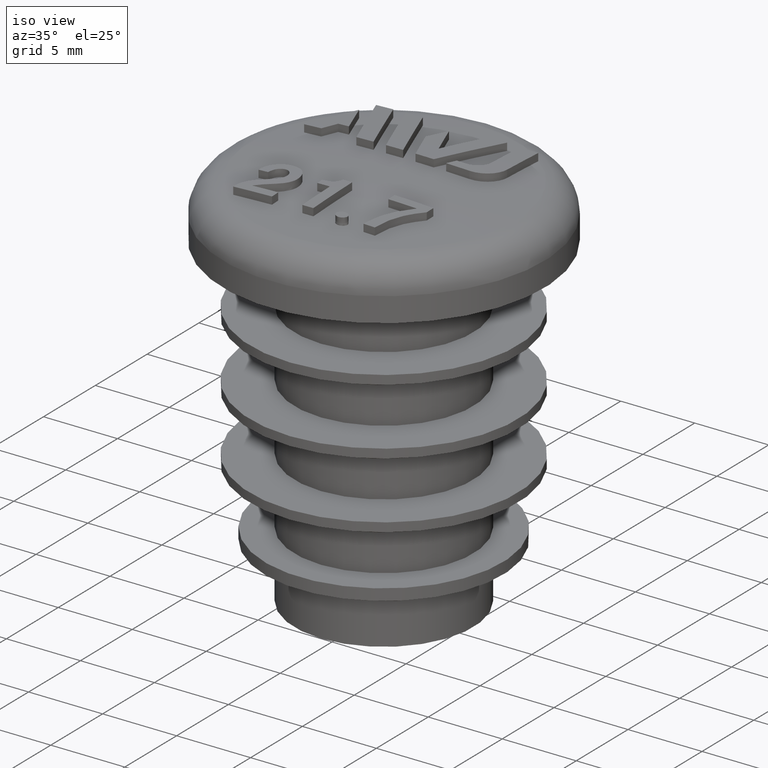
[diagram: clean part render]
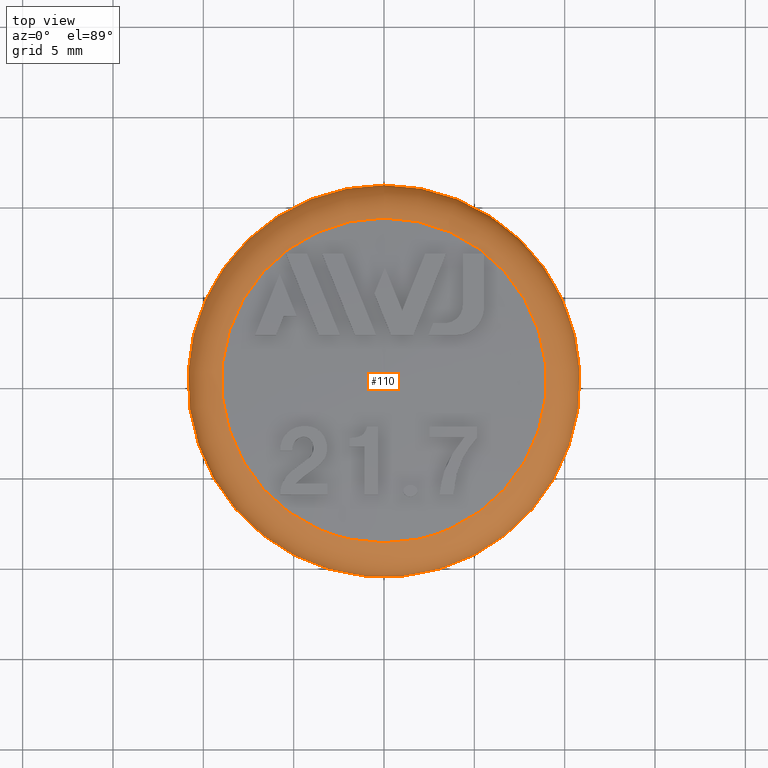
[diagram: tour spotlight — one face highlighted and labeled with its STEP entity id]
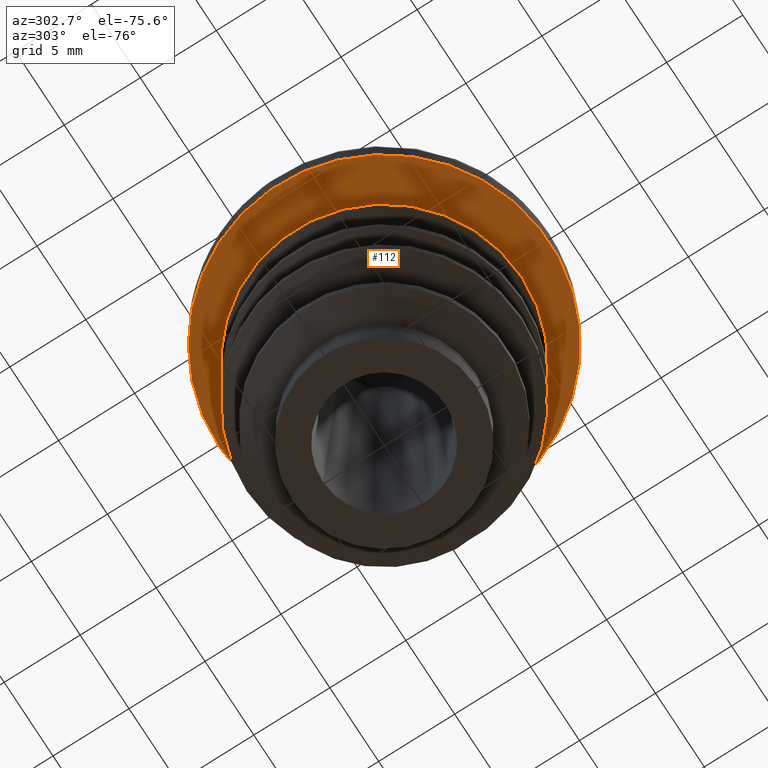
[diagram: tour spotlight — one face highlighted and labeled with its STEP entity id]
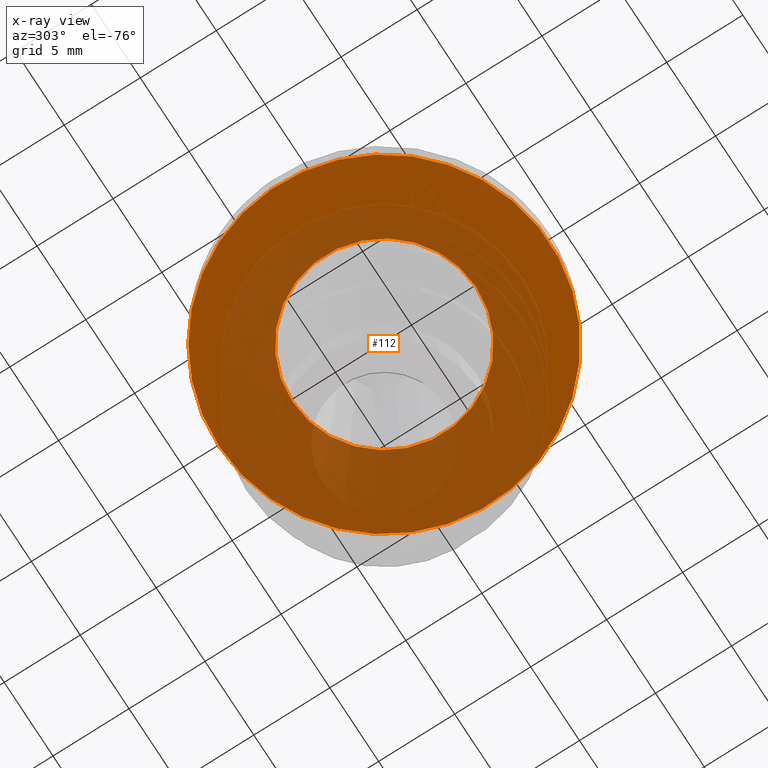
[diagram: x-ray of the same camera — body ghosted, this tour face saturated]
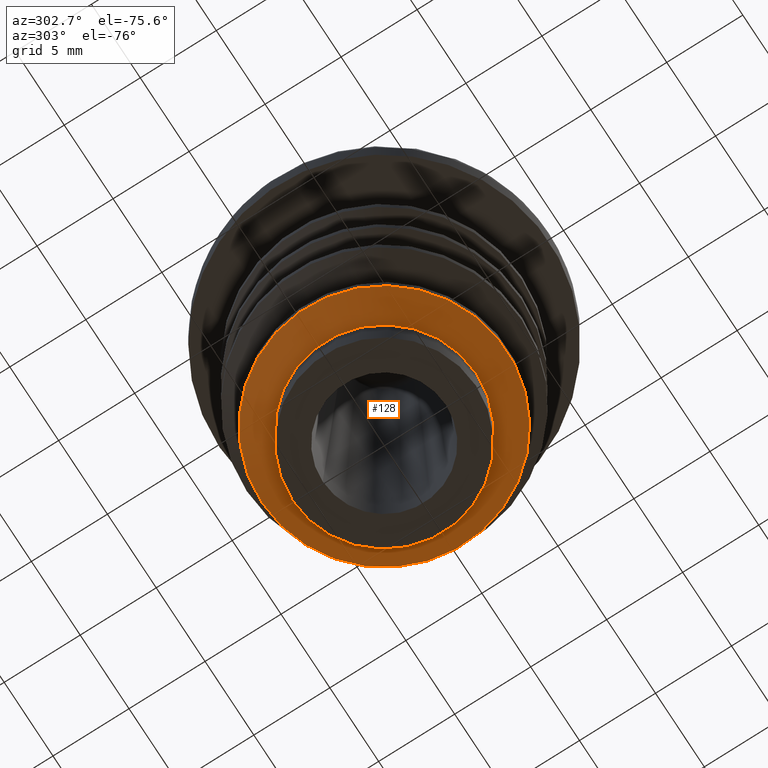
[diagram: tour spotlight — one face highlighted and labeled with its STEP entity id]
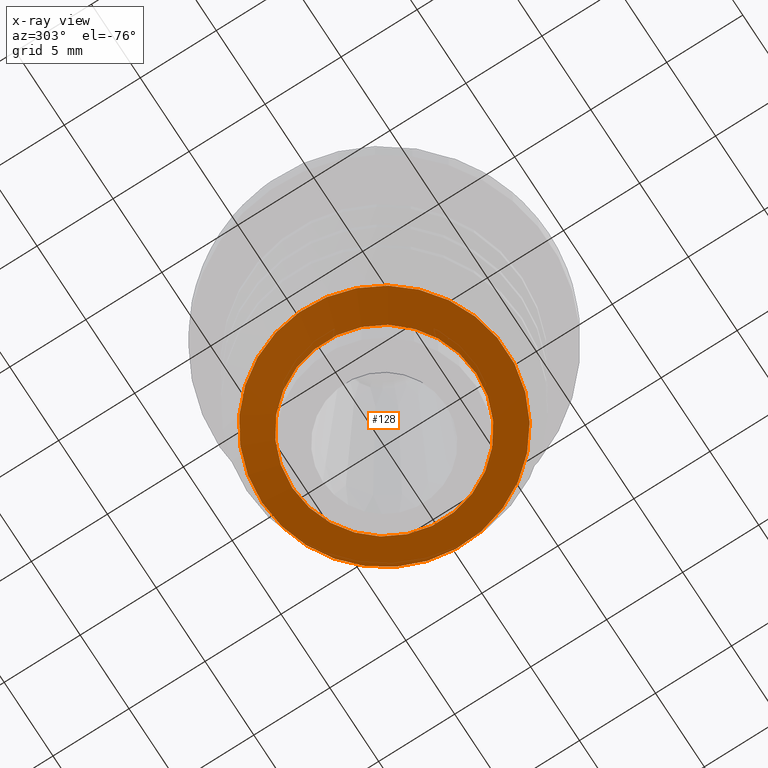
[diagram: x-ray of the same camera — body ghosted, this tour face saturated]
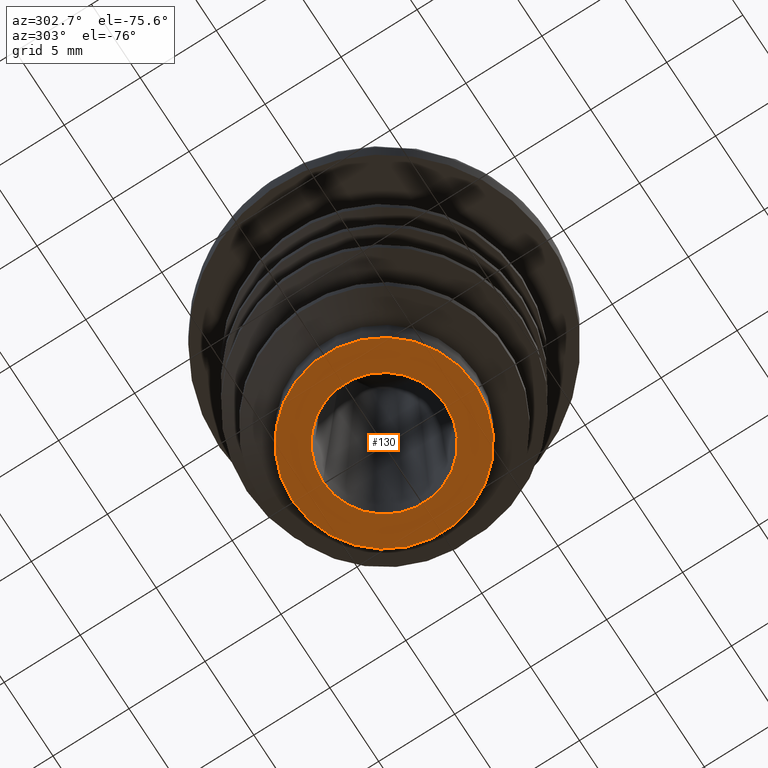
[diagram: tour spotlight — one face highlighted and labeled with its STEP entity id]
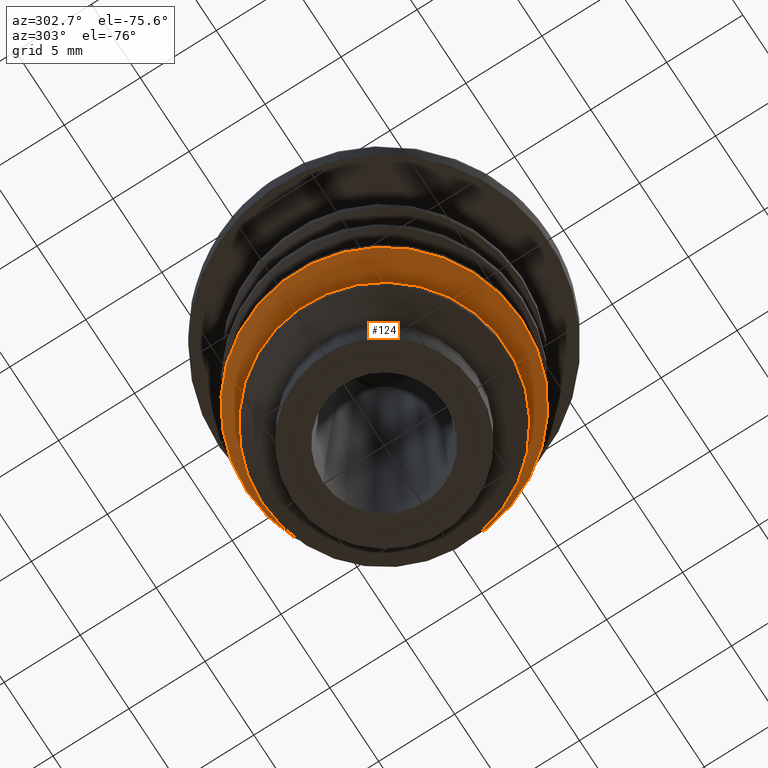
[diagram: tour spotlight — one face highlighted and labeled with its STEP entity id]
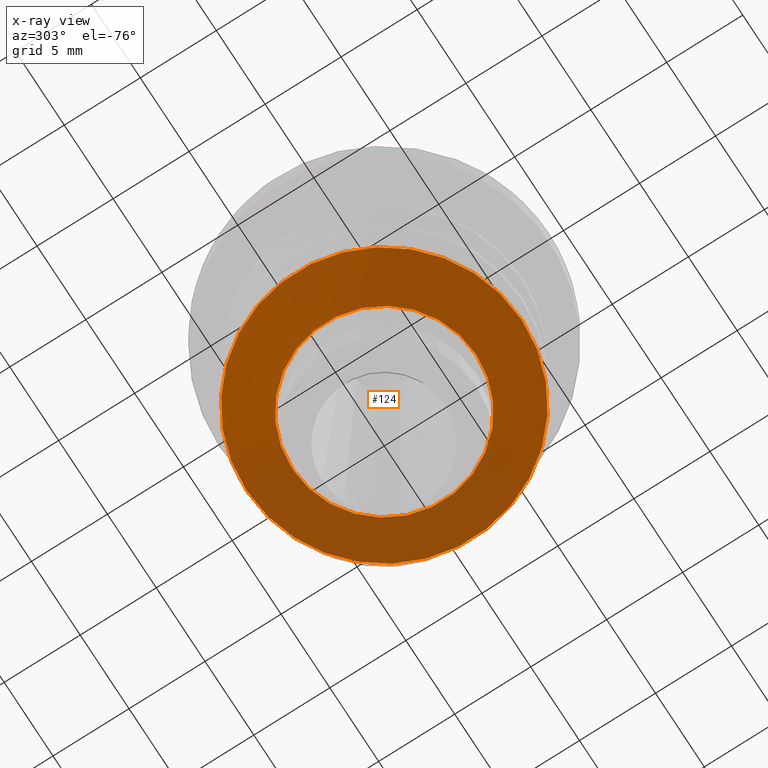
[diagram: x-ray of the same camera — body ghosted, this tour face saturated]
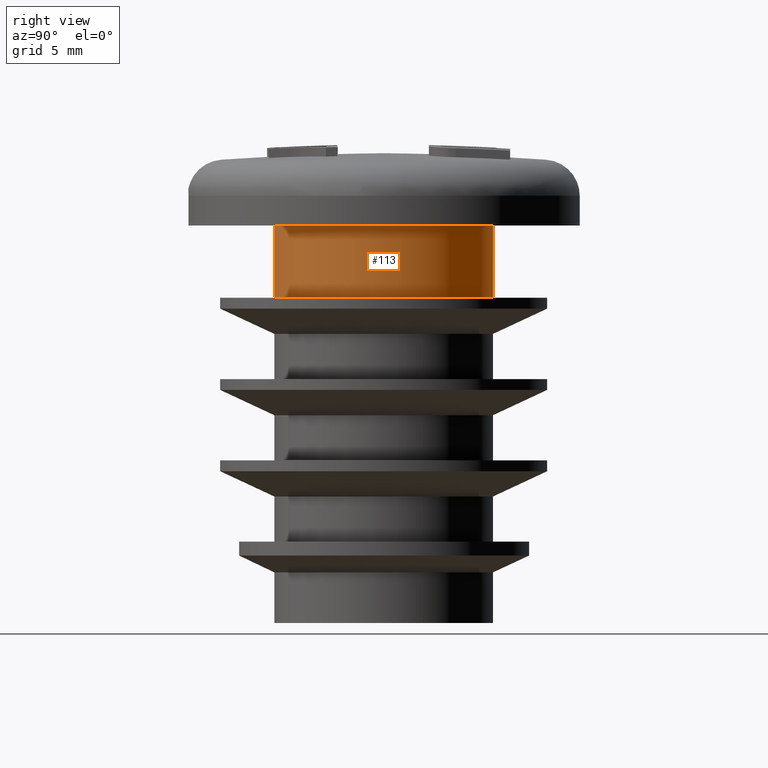
[diagram: tour spotlight — one face highlighted and labeled with its STEP entity id]
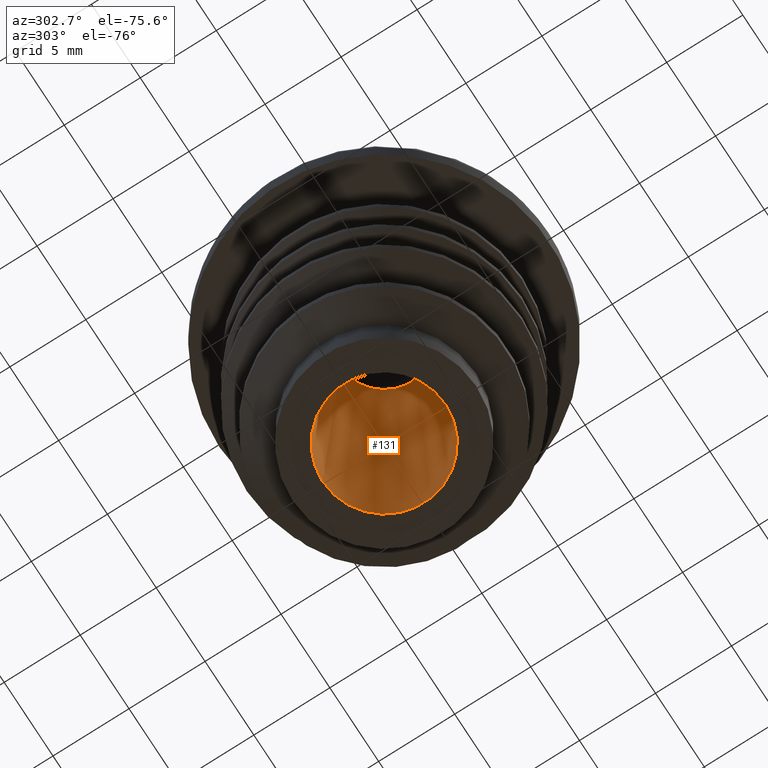
[diagram: tour spotlight — one face highlighted and labeled with its STEP entity id]
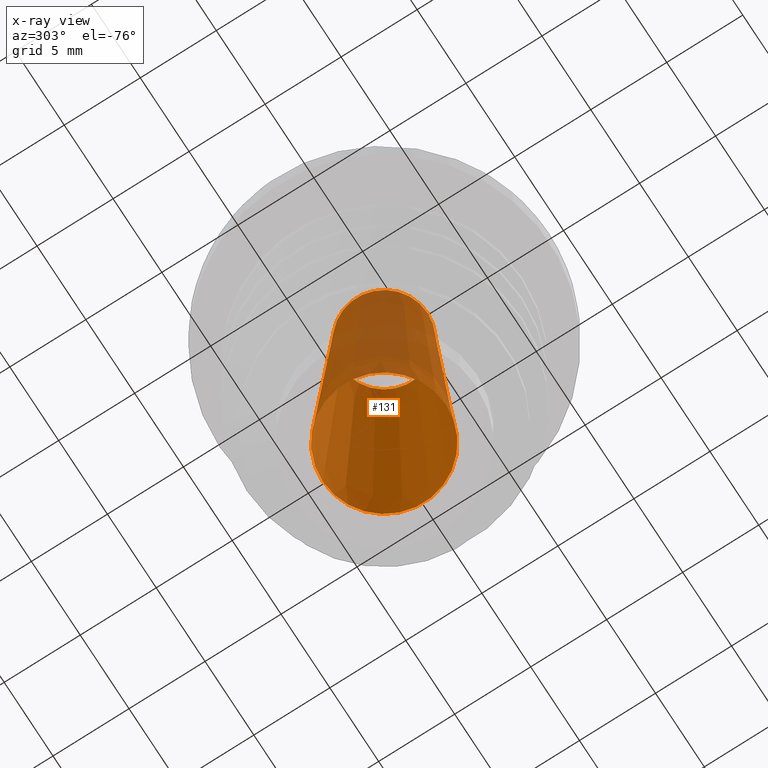
[diagram: x-ray of the same camera — body ghosted, this tour face saturated]
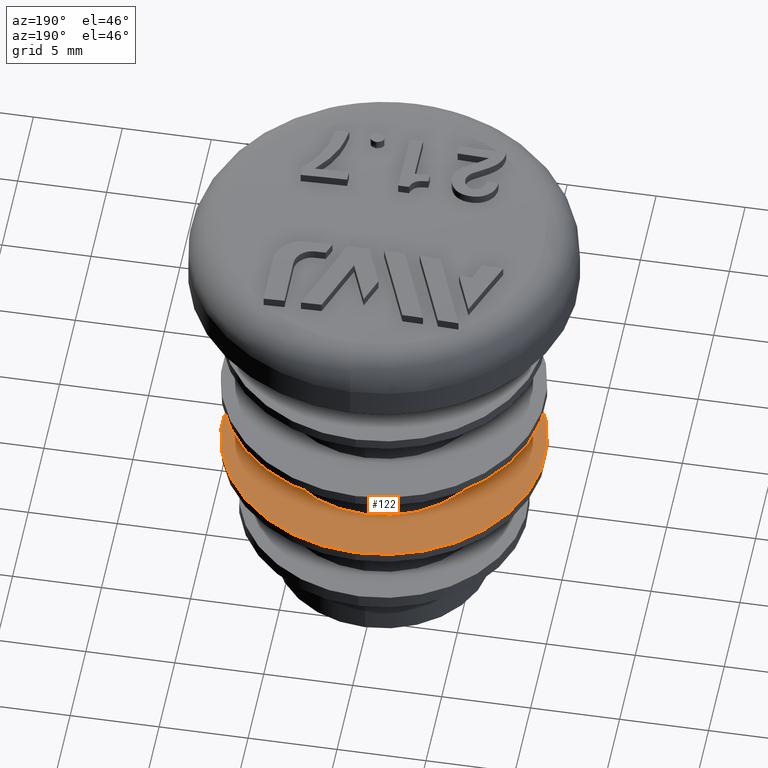
[diagram: tour spotlight — one face highlighted and labeled with its STEP entity id]
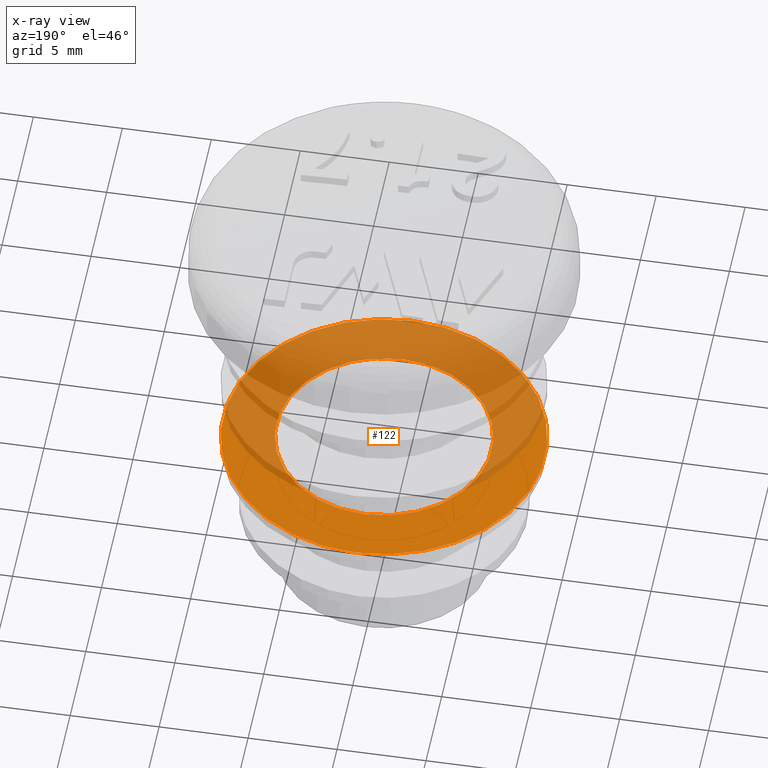
[diagram: x-ray of the same camera — body ghosted, this tour face saturated]
A machine part: a face-by-face anatomy tour. The part has 83 B-rep faces; the first image is the clean iso view, then the 8 largest visible faces are spotlighted one at a time (largest first), each with its STEP entity span.

Face 1 — top view, entity #110. In plain terms, the highlighted toroidal blend (fillet) surface has major radius 8.85 mm and minor (blend) radius 2 mm.
Definition (entity closure, byte-faithful):
#110 = ADVANCED_FACE( '', ( #239, #240 ), #241, .T. );
#239 = FACE_OUTER_BOUND( '', #605, .T. );
#240 = FACE_OUTER_BOUND( '', #606, .T. );
#241 = TOROIDAL_SURFACE( '', #607, 8.85000000000000, 2.00000000000000 );
#605 = EDGE_LOOP( '', ( #1079 ) );
#606 = EDGE_LOOP( '', ( #1080 ) );
#607 = AXIS2_PLACEMENT_3D( '', #1081, #1082, #1083 );
#1079 = ORIENTED_EDGE( '', *, *, #1517, .F. );
#1080 = ORIENTED_EDGE( '', *, *, #1426, .T. );
#1081 = CARTESIAN_POINT( '', ( 0.000000000000000, 1.00823282938018E-016, 23.6466235476129 ) );
#1082 = DIRECTION( '', ( 0.000000000000000, -6.12303176911189E-017, -1.00000000000000 ) );
#1083 = DIRECTION( '', ( 0.000000000000000, 1.00000000000000, -6.12303176911189E-017 ) );
#1426 = EDGE_CURVE( '', #1620, #1620, #1621, .T. );
#1517 = EDGE_CURVE( '', #1772, #1772, #1773, .T. );
#1620 = VERTEX_POINT( '', #2103 );
#1621 = CIRCLE( '', #2104, 8.98953496199148 );
#1772 = VERTEX_POINT( '', #2580 );
#1773 = CIRCLE( '', #2581, 10.8500000000000 );
#2103 = CARTESIAN_POINT( '', ( 0.000000000000000, 8.98953496199148, 25.6417501086065 ) );
#2104 = AXIS2_PLACEMENT_3D( '', #2846, #2847, #2848 );
#2580 = CARTESIAN_POINT( '', ( 0.000000000000000, 10.8500000000000, 23.6466235476129 ) );
#2581 = AXIS2_PLACEMENT_3D( '', #2877, #2878, #2879 );
#2846 = CARTESIAN_POINT( '', ( 0.000000000000000, 2.22985516101645E-016, 25.6417501086065 ) );
#2847 = DIRECTION( '', ( 0.000000000000000, -6.12303176911189E-017, -1.00000000000000 ) );
#2848 = DIRECTION( '', ( 0.000000000000000, 1.00000000000000, -6.12303176911189E-017 ) );
#2877 = CARTESIAN_POINT( '', ( 0.000000000000000, 1.00823282938018E-016, 23.6466235476129 ) );
#2878 = DIRECTION( '', ( 0.000000000000000, -6.12303176911189E-017, -1.00000000000000 ) );
#2879 = DIRECTION( '', ( 0.000000000000000, 1.00000000000000, -6.12303176911189E-017 ) );

Face 2 — auxiliary view, entity #112. An x-ray twin of the same camera follows (body ghosted, this face saturated) — the face is partly hidden behind the body. In plain terms, the highlighted planar face has unit normal (0, 0, 1).
Definition (entity closure, byte-faithful):
#112 = ADVANCED_FACE( '', ( #245, #246 ), #247, .F. );
#245 = FACE_BOUND( '', #611, .T. );
#246 = FACE_OUTER_BOUND( '', #612, .T. );
#247 = PLANE( '', #613 );
#611 = EDGE_LOOP( '', ( #1089 ) );
#612 = EDGE_LOOP( '', ( #1090 ) );
#613 = AXIS2_PLACEMENT_3D( '', #1091, #1092, #1093 );
#1089 = ORIENTED_EDGE( '', *, *, #1519, .F. );
#1090 = ORIENTED_EDGE( '', *, *, #1518, .T. );
#1091 = CARTESIAN_POINT( '', ( -10.8500000000000, -6.63860434626887E-032, 22.0000000000000 ) );
#1092 = DIRECTION( '', ( 0.000000000000000, 6.12303176911189E-017, 1.00000000000000 ) );
#1093 = DIRECTION( '', ( 0.000000000000000, -1.00000000000000, 6.12303176911189E-017 ) );
#1518 = EDGE_CURVE( '', #1774, #1774, #1775, .T. );
#1519 = EDGE_CURVE( '', #1776, #1776, #1777, .T. );
#1774 = VERTEX_POINT( '', #2582 );
#1775 = CIRCLE( '', #2583, 10.8500000000000 );
#1776 = VERTEX_POINT( '', #2584 );
#1777 = CIRCLE( '', #2585, 6.05000000000001 );
#2582 = CARTESIAN_POINT( '', ( 0.000000000000000, 10.8500000000000, 22.0000000000000 ) );
#2583 = AXIS2_PLACEMENT_3D( '', #2880, #2881, #2882 );
#2584 = CARTESIAN_POINT( '', ( 0.000000000000000, 6.05000000000001, 22.0000000000000 ) );
#2585 = AXIS2_PLACEMENT_3D( '', #2883, #2884, #2885 );
#2880 = CARTESIAN_POINT( '', ( 0.000000000000000, -1.32772086925377E-031, 22.0000000000000 ) );
#2881 = DIRECTION( '', ( 0.000000000000000, -6.12303176911189E-017, -1.00000000000000 ) );
#2882 = DIRECTION( '', ( 0.000000000000000, 1.00000000000000, -6.12303176911189E-017 ) );
#2883 = CARTESIAN_POINT( '', ( 0.000000000000000, 0.000000000000000, 22.0000000000000 ) );
#2884 = DIRECTION( '', ( 0.000000000000000, -6.12303176911189E-017, -1.00000000000000 ) );
#2885 = DIRECTION( '', ( 0.000000000000000, 1.00000000000000, -6.12303176911189E-017 ) );

Face 3 — auxiliary view, entity #128. An x-ray twin of the same camera follows (body ghosted, this face saturated) — the face is partly hidden behind the body. In plain terms, the highlighted conical surface has half-angle 65 deg.
Definition (entity closure, byte-faithful):
#128 = ADVANCED_FACE( '', ( #293, #294 ), #295, .T. );
#293 = FACE_BOUND( '', #659, .T. );
#294 = FACE_OUTER_BOUND( '', #660, .T. );
#295 = CONICAL_SURFACE( '', #661, 8.05000000000000, 1.13446401379632 );
#659 = EDGE_LOOP( '', ( #1169 ) );
#660 = EDGE_LOOP( '', ( #1170 ) );
#661 = AXIS2_PLACEMENT_3D( '', #1171, #1172, #1173 );
#1169 = ORIENTED_EDGE( '', *, *, #1535, .F. );
#1170 = ORIENTED_EDGE( '', *, *, #1534, .T. );
#1171 = CARTESIAN_POINT( '', ( 0.000000000000000, -1.11851776756822E-015, 3.73261531631000 ) );
#1172 = DIRECTION( '', ( 0.000000000000000, 6.12303176911189E-017, 1.00000000000000 ) );
#1173 = DIRECTION( '', ( 0.000000000000000, -1.00000000000000, 6.12303176911189E-017 ) );
#1534 = EDGE_CURVE( '', #1806, #1806, #1807, .T. );
#1535 = EDGE_CURVE( '', #1808, #1808, #1809, .T. );
#1806 = VERTEX_POINT( '', #2614 );
#1807 = CIRCLE( '', #2615, 8.05000000000000 );
#1808 = VERTEX_POINT( '', #2616 );
#1809 = CIRCLE( '', #2617, 6.05000000000001 );
#2614 = CARTESIAN_POINT( '', ( 0.000000000000000, 8.05000000000000, 3.73261531631000 ) );
#2615 = AXIS2_PLACEMENT_3D( '', #2928, #2929, #2930 );
#2616 = CARTESIAN_POINT( '', ( 0.000000000000000, 6.05000000000001, 2.80000000000000 ) );
#2617 = AXIS2_PLACEMENT_3D( '', #2931, #2932, #2933 );
#2928 = CARTESIAN_POINT( '', ( 0.000000000000000, -1.11851776756822E-015, 3.73261531631000 ) );
#2929 = DIRECTION( '', ( 0.000000000000000, -6.12303176911189E-017, -1.00000000000000 ) );
#2930 = DIRECTION( '', ( 0.000000000000000, 1.00000000000000, -6.12303176911189E-017 ) );
#2931 = CARTESIAN_POINT( '', ( 0.000000000000000, -1.17562209966948E-015, 2.80000000000000 ) );
#2932 = DIRECTION( '', ( 0.000000000000000, -6.12303176911189E-017, -1.00000000000000 ) );
#2933 = DIRECTION( '', ( 0.000000000000000, 1.00000000000000, -6.12303176911189E-017 ) );

Face 4 — auxiliary view, entity #130. In plain terms, the highlighted planar face has unit normal (0, 0, 1).
Definition (entity closure, byte-faithful):
#130 = ADVANCED_FACE( '', ( #299, #300 ), #301, .F. );
#299 = FACE_BOUND( '', #665, .T. );
#300 = FACE_OUTER_BOUND( '', #666, .T. );
#301 = PLANE( '', #667 );
#665 = EDGE_LOOP( '', ( #1179 ) );
#666 = EDGE_LOOP( '', ( #1180 ) );
#667 = AXIS2_PLACEMENT_3D( '', #1181, #1182, #1183 );
#1179 = ORIENTED_EDGE( '', *, *, #1537, .F. );
#1180 = ORIENTED_EDGE( '', *, *, #1536, .T. );
#1181 = CARTESIAN_POINT( '', ( -6.05000000000000, -1.34706698920461E-015, 3.46944695195361E-015 ) );
#1182 = DIRECTION( '', ( 0.000000000000000, 6.12303176911189E-017, 1.00000000000000 ) );
#1183 = DIRECTION( '', ( 0.000000000000000, -1.00000000000000, 6.12303176911189E-017 ) );
#1536 = EDGE_CURVE( '', #1810, #1810, #1811, .T. );
#1537 = EDGE_CURVE( '', #1812, #1812, #1813, .T. );
#1810 = VERTEX_POINT( '', #2618 );
#1811 = CIRCLE( '', #2619, 6.05000000000000 );
#1812 = VERTEX_POINT( '', #2620 );
#1813 = CIRCLE( '', #2621, 4.04999999999997 );
#2618 = CARTESIAN_POINT( '', ( 0.000000000000000, 6.05000000000000, 6.56845048187596E-015 ) );
#2619 = AXIS2_PLACEMENT_3D( '', #2934, #2935, #2936 );
#2620 = CARTESIAN_POINT( '', ( 0.000000000000000, 4.04999999999997, -2.47982786649030E-016 ) );
#2621 = AXIS2_PLACEMENT_3D( '', #2937, #2938, #2939 );
#2934 = CARTESIAN_POINT( '', ( 0.000000000000000, -1.34706698920461E-015, 6.93889390390723E-015 ) );
#2935 = DIRECTION( '', ( 0.000000000000000, -6.12303176911189E-017, -1.00000000000000 ) );
#2936 = DIRECTION( '', ( 0.000000000000000, 1.00000000000000, -6.12303176911189E-017 ) );
#2937 = CARTESIAN_POINT( '', ( 0.000000000000000, -1.34706698920462E-015, 0.000000000000000 ) );
#2938 = DIRECTION( '', ( 0.000000000000000, -6.12303176911189E-017, -1.00000000000000 ) );
#2939 = DIRECTION( '', ( 0.000000000000000, 1.00000000000000, -6.12303176911189E-017 ) );

Face 5 — auxiliary view, entity #124. An x-ray twin of the same camera follows (body ghosted, this face saturated) — the face is partly hidden behind the body. In plain terms, the highlighted conical surface has half-angle 65 deg.
Definition (entity closure, byte-faithful):
#124 = ADVANCED_FACE( '', ( #281, #282 ), #283, .T. );
#281 = FACE_BOUND( '', #647, .T. );
#282 = FACE_OUTER_BOUND( '', #648, .T. );
#283 = CONICAL_SURFACE( '', #649, 9.05000000000000, 1.13446401379631 );
#647 = EDGE_LOOP( '', ( #1149 ) );
#648 = EDGE_LOOP( '', ( #1150 ) );
#649 = AXIS2_PLACEMENT_3D( '', #1151, #1152, #1153 );
#1149 = ORIENTED_EDGE( '', *, *, #1531, .F. );
#1150 = ORIENTED_EDGE( '', *, *, #1530, .T. );
#1151 = CARTESIAN_POINT( '', ( 0.000000000000000, -8.32798267214885E-016, 8.39892297446501 ) );
#1152 = DIRECTION( '', ( 0.000000000000000, 6.12303176911189E-017, 1.00000000000000 ) );
#1153 = DIRECTION( '', ( 0.000000000000000, -1.00000000000000, 6.12303176911189E-017 ) );
#1530 = EDGE_CURVE( '', #1798, #1798, #1799, .T. );
#1531 = EDGE_CURVE( '', #1800, #1800, #1801, .T. );
#1798 = VERTEX_POINT( '', #2606 );
#1799 = CIRCLE( '', #2607, 9.05000000000000 );
#1800 = VERTEX_POINT( '', #2608 );
#1801 = CIRCLE( '', #2609, 6.05000000000000 );
#2606 = CARTESIAN_POINT( '', ( 0.000000000000000, 9.05000000000000, 8.39892297446501 ) );
#2607 = AXIS2_PLACEMENT_3D( '', #2916, #2917, #2918 );
#2608 = CARTESIAN_POINT( '', ( 0.000000000000000, 6.05000000000000, 7.00000000000001 ) );
#2609 = AXIS2_PLACEMENT_3D( '', #2919, #2920, #2921 );
#2916 = CARTESIAN_POINT( '', ( 0.000000000000000, -8.32798267214885E-016, 8.39892297446501 ) );
#2917 = DIRECTION( '', ( 0.000000000000000, -6.12303176911189E-017, -1.00000000000000 ) );
#2918 = DIRECTION( '', ( 0.000000000000000, 1.00000000000000, -6.12303176911189E-017 ) );
#2919 = CARTESIAN_POINT( '', ( 0.000000000000000, -9.18454765366782E-016, 7.00000000000001 ) );
#2920 = DIRECTION( '', ( 0.000000000000000, -6.12303176911189E-017, -1.00000000000000 ) );
#2921 = DIRECTION( '', ( 0.000000000000000, 1.00000000000000, -6.12303176911189E-017 ) );

Face 6 — right view, entity #113. In plain terms, the highlighted cylindrical surface (bore or boss wall) has radius 6.05 mm, axis along (0, 0, 1).
Definition (entity closure, byte-faithful):
#113 = ADVANCED_FACE( '', ( #248, #249 ), #250, .T. );
#248 = FACE_OUTER_BOUND( '', #614, .T. );
#249 = FACE_OUTER_BOUND( '', #615, .T. );
#250 = CYLINDRICAL_SURFACE( '', #616, 6.05000000000000 );
#614 = EDGE_LOOP( '', ( #1094 ) );
#615 = EDGE_LOOP( '', ( #1095 ) );
#616 = AXIS2_PLACEMENT_3D( '', #1096, #1097, #1098 );
#1094 = ORIENTED_EDGE( '', *, *, #1520, .F. );
#1095 = ORIENTED_EDGE( '', *, *, #1519, .T. );
#1096 = CARTESIAN_POINT( '', ( 0.000000000000000, 0.000000000000000, 22.0000000000000 ) );
#1097 = DIRECTION( '', ( 0.000000000000000, 6.12303176911189E-017, 1.00000000000000 ) );
#1098 = DIRECTION( '', ( 0.000000000000000, 1.00000000000000, -6.12303176911189E-017 ) );
#1519 = EDGE_CURVE( '', #1776, #1776, #1777, .T. );
#1520 = EDGE_CURVE( '', #1778, #1778, #1779, .T. );
#1776 = VERTEX_POINT( '', #2584 );
#1777 = CIRCLE( '', #2585, 6.05000000000001 );
#1778 = VERTEX_POINT( '', #2586 );
#1779 = CIRCLE( '', #2587, 6.05000000000000 );
#2584 = CARTESIAN_POINT( '', ( 0.000000000000000, 6.05000000000001, 22.0000000000000 ) );
#2585 = AXIS2_PLACEMENT_3D( '', #2883, #2884, #2885 );
#2586 = CARTESIAN_POINT( '', ( 0.000000000000000, 6.05000000000000, 18.0000000000000 ) );
#2587 = AXIS2_PLACEMENT_3D( '', #2886, #2887, #2888 );
#2883 = CARTESIAN_POINT( '', ( 0.000000000000000, 0.000000000000000, 22.0000000000000 ) );
#2884 = DIRECTION( '', ( 0.000000000000000, -6.12303176911189E-017, -1.00000000000000 ) );
#2885 = DIRECTION( '', ( 0.000000000000000, 1.00000000000000, -6.12303176911189E-017 ) );
#2886 = CARTESIAN_POINT( '', ( 0.000000000000000, -2.44921270764476E-016, 18.0000000000000 ) );
#2887 = DIRECTION( '', ( 0.000000000000000, -6.12303176911189E-017, -1.00000000000000 ) );
#2888 = DIRECTION( '', ( 0.000000000000000, 1.00000000000000, -6.12303176911189E-017 ) );

Face 7 — auxiliary view, entity #131. An x-ray twin of the same camera follows (body ghosted, this face saturated) — the face is partly hidden behind the body. In plain terms, the highlighted conical surface has half-angle 3 deg.
Definition (entity closure, byte-faithful):
#131 = ADVANCED_FACE( '', ( #302, #303 ), #304, .F. );
#302 = FACE_BOUND( '', #668, .T. );
#303 = FACE_OUTER_BOUND( '', #669, .T. );
#304 = CONICAL_SURFACE( '', #670, 4.04999999999997, 0.0523598775598288 );
#668 = EDGE_LOOP( '', ( #1184 ) );
#669 = EDGE_LOOP( '', ( #1185 ) );
#670 = AXIS2_PLACEMENT_3D( '', #1186, #1187, #1188 );
#1184 = ORIENTED_EDGE( '', *, *, #1538, .F. );
#1185 = ORIENTED_EDGE( '', *, *, #1537, .T. );
#1186 = CARTESIAN_POINT( '', ( 0.000000000000000, -1.34706698920462E-015, 0.000000000000000 ) );
#1187 = DIRECTION( '', ( 0.000000000000000, -6.12303176911189E-017, -1.00000000000000 ) );
#1188 = DIRECTION( '', ( 0.000000000000000, 1.00000000000000, -6.12303176911189E-017 ) );
#1537 = EDGE_CURVE( '', #1812, #1812, #1813, .T. );
#1538 = EDGE_CURVE( '', #1814, #1814, #1815, .T. );
#1812 = VERTEX_POINT( '', #2620 );
#1813 = CIRCLE( '', #2621, 4.04999999999997 );
#1814 = VERTEX_POINT( '', #2622 );
#1815 = CIRCLE( '', #2623, 2.84324967086838 );
#2620 = CARTESIAN_POINT( '', ( 0.000000000000000, 4.04999999999997, -2.47982786649030E-016 ) );
#2621 = AXIS2_PLACEMENT_3D( '', #2937, #2938, #2939 );
#2622 = CARTESIAN_POINT( '', ( 0.000000000000000, 2.84324967086838, 23.0261679781214 ) );
#2623 = AXIS2_PLACEMENT_3D( '', #2940, #2941, #2942 );
#2937 = CARTESIAN_POINT( '', ( 0.000000000000000, -1.34706698920462E-015, 0.000000000000000 ) );
#2938 = DIRECTION( '', ( 0.000000000000000, -6.12303176911189E-017, -1.00000000000000 ) );
#2939 = DIRECTION( '', ( 0.000000000000000, 1.00000000000000, -6.12303176911189E-017 ) );
#2940 = CARTESIAN_POINT( '', ( 0.000000000000000, 6.28325913048293E-017, 23.0261679781214 ) );
#2941 = DIRECTION( '', ( 0.000000000000000, -6.12303176911189E-017, -1.00000000000000 ) );
#2942 = DIRECTION( '', ( 0.000000000000000, 1.00000000000000, -6.12303176911189E-017 ) );

Face 8 — auxiliary view, entity #122. An x-ray twin of the same camera follows (body ghosted, this face saturated) — the face is partly hidden behind the body. In plain terms, the highlighted planar face has unit normal (0, -0, -1).
Definition (entity closure, byte-faithful):
#122 = ADVANCED_FACE( '', ( #275, #276 ), #277, .F. );
#275 = FACE_OUTER_BOUND( '', #641, .T. );
#276 = FACE_BOUND( '', #642, .T. );
#277 = PLANE( '', #643 );
#641 = EDGE_LOOP( '', ( #1139 ) );
#642 = EDGE_LOOP( '', ( #1140 ) );
#643 = AXIS2_PLACEMENT_3D( '', #1141, #1142, #1143 );
#1139 = ORIENTED_EDGE( '', *, *, #1529, .F. );
#1140 = ORIENTED_EDGE( '', *, *, #1528, .T. );
#1141 = CARTESIAN_POINT( '', ( -6.05000000000000, -7.95994129984545E-016, 9.00000000000000 ) );
#1142 = DIRECTION( '', ( 0.000000000000000, -6.12303176911189E-017, -1.00000000000000 ) );
#1143 = DIRECTION( '', ( 0.000000000000000, 1.00000000000000, -6.12303176911189E-017 ) );
#1528 = EDGE_CURVE( '', #1794, #1794, #1795, .T. );
#1529 = EDGE_CURVE( '', #1796, #1796, #1797, .T. );
#1794 = VERTEX_POINT( '', #2602 );
#1795 = CIRCLE( '', #2603, 6.05000000000000 );
#1796 = VERTEX_POINT( '', #2604 );
#1797 = CIRCLE( '', #2605, 9.05000000000000 );
#2602 = CARTESIAN_POINT( '', ( 0.000000000000000, 6.05000000000000, 9.00000000000000 ) );
#2603 = AXIS2_PLACEMENT_3D( '', #2910, #2911, #2912 );
#2604 = CARTESIAN_POINT( '', ( 0.000000000000000, 9.05000000000000, 9.00000000000000 ) );
#2605 = AXIS2_PLACEMENT_3D( '', #2913, #2914, #2915 );
#2910 = CARTESIAN_POINT( '', ( 0.000000000000000, -7.95994129984545E-016, 9.00000000000000 ) );
#2911 = DIRECTION( '', ( 0.000000000000000, -6.12303176911189E-017, -1.00000000000000 ) );
#2912 = DIRECTION( '', ( 0.000000000000000, 1.00000000000000, -6.12303176911189E-017 ) );
#2913 = CARTESIAN_POINT( '', ( 0.000000000000000, -7.95994129984545E-016, 9.00000000000000 ) );
#2914 = DIRECTION( '', ( 0.000000000000000, -6.12303176911189E-017, -1.00000000000000 ) );
#2915 = DIRECTION( '', ( 0.000000000000000, 1.00000000000000, -6.12303176911189E-017 ) );